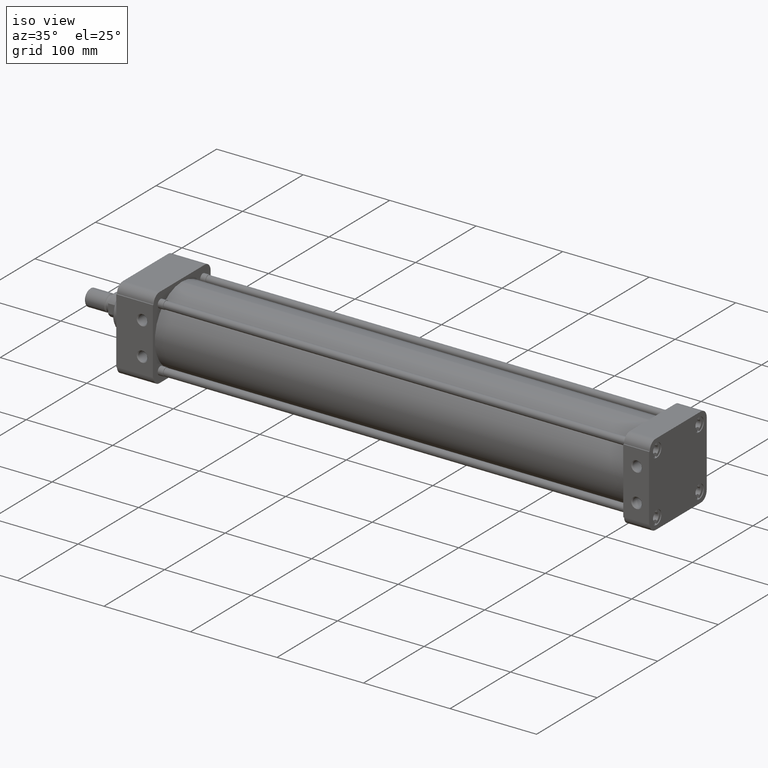
[diagram: clean part render]
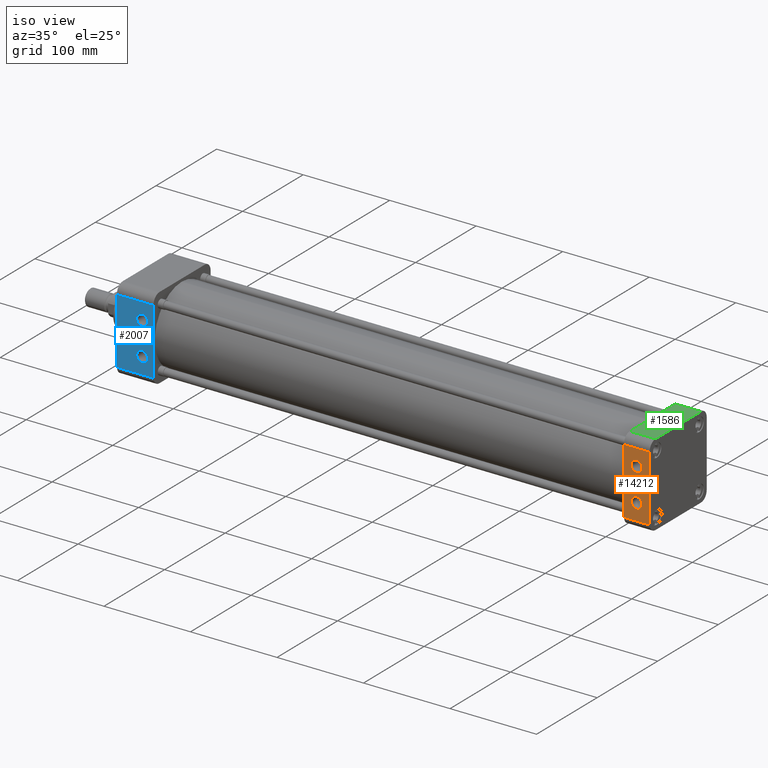
[diagram: same view with three faces highlighted in distinct colors, each labeled with its STEP entity id]
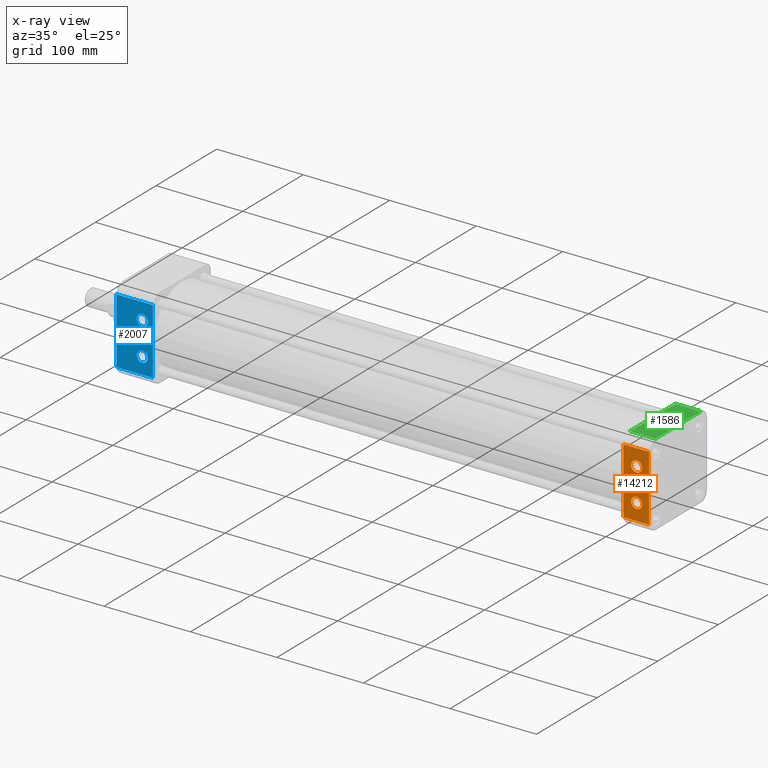
[diagram: x-ray of the same camera — body ghosted, the three highlighted faces saturated]
A machine part, iso view with three faces highlighted in distinct colors.
The next image is the same camera in x-ray (body ghosted, the three faces saturated) — at least one of them is partly hidden behind the body in this view.
Their STEP definitions:

[orange] entity #14212 — the highlighted planar face has unit normal (0, 1, 0).
#23 = CIRCLE ( 'NONE', #2505, 0.2500000000001861300 ) ;
#149 = VERTEX_POINT ( 'NONE', #1162 ) ;
#206 = AXIS2_PLACEMENT_3D ( 'NONE', #11683, #4884, #12818 ) ;
#242 = VERTEX_POINT ( 'NONE', #7846 ) ;
#621 = DIRECTION ( 'NONE',  ( 0.0000000000000000000, 0.0000000000000000000, 1.000000000000000000 ) ) ;
#639 = EDGE_CURVE ( 'NONE', #7214, #242, #1383, .T. ) ;
#710 = DIRECTION ( 'NONE',  ( -1.000000000000000000, 0.0000000000000000000, 0.0000000000000000000 ) ) ;
#933 = ORIENTED_EDGE ( 'NONE', *, *, #1384, .F. ) ;
#1088 = VERTEX_POINT ( 'NONE', #10280 ) ;
#1162 = CARTESIAN_POINT ( 'NONE',  ( 23.68300000000000000, -1.875000000001539400, -0.4999999999998138200 ) ) ;
#1364 = FACE_OUTER_BOUND ( 'NONE', #5490, .T. ) ;
#1383 = LINE ( 'NONE', #12089, #13071 ) ;
#1384 = EDGE_CURVE ( 'NONE', #12585, #149, #10160, .T. ) ;
#1732 = VECTOR ( 'NONE', #11988, 39.37007874015748100 ) ;
#1838 = VECTOR ( 'NONE', #3839, 39.37007874015748100 ) ;
#1852 = DIRECTION ( 'NONE',  ( -0.0000000000000000000, -0.0000000000000000000, 1.000000000000000000 ) ) ;
#1853 = DIRECTION ( 'NONE',  ( 0.0000000000000000000, -1.000000000000000000, 0.0000000000000000000 ) ) ;
#2416 = CARTESIAN_POINT ( 'NONE',  ( 23.68300000000000000, -1.875000000001539400, -1.000000000000186100 ) ) ;
#2505 = AXIS2_PLACEMENT_3D ( 'NONE', #11573, #4781, #12721 ) ;
#2642 = ORIENTED_EDGE ( 'NONE', *, *, #2983, .F. ) ;
#2698 = CARTESIAN_POINT ( 'NONE',  ( 23.07599999999999700, -1.874999999999999800, 1.499999999999999800 ) ) ;
#2983 = EDGE_CURVE ( 'NONE', #1088, #14157, #4822, .T. ) ;
#3050 = DIRECTION ( 'NONE',  ( 0.0000000000000000000, 1.000000000000000000, 0.0000000000000000000 ) ) ;
#3356 = AXIS2_PLACEMENT_3D ( 'NONE', #14186, #7405, #621 ) ;
#3839 = DIRECTION ( 'NONE',  ( 1.000000000000000000, -0.0000000000000000000, -0.0000000000000000000 ) ) ;
#4323 = ORIENTED_EDGE ( 'NONE', *, *, #4877, .F. ) ;
#4781 = DIRECTION ( 'NONE',  ( 0.0000000000000000000, -1.000000000000000000, 0.0000000000000000000 ) ) ;
#4822 = LINE ( 'NONE', #2698, #1838 ) ;
#4877 = EDGE_CURVE ( 'NONE', #8462, #13217, #9821, .T. ) ;
#4884 = DIRECTION ( 'NONE',  ( 0.0000000000000000000, -1.000000000000000000, 0.0000000000000000000 ) ) ;
#5194 = CARTESIAN_POINT ( 'NONE',  ( 24.24599999999999900, -1.874999999999999800, -1.499999999999999800 ) ) ;
#5212 = ORIENTED_EDGE ( 'NONE', *, *, #6486, .T. ) ;
#5490 = EDGE_LOOP ( 'NONE', ( #2642, #13324, #8180, #5212 ) ) ;
#6362 = CARTESIAN_POINT ( 'NONE',  ( 24.24599999999999900, -1.874999999999999800, 1.499999999999999800 ) ) ;
#6486 = EDGE_CURVE ( 'NONE', #7214, #14157, #13793, .T. ) ;
#6590 = AXIS2_PLACEMENT_3D ( 'NONE', #9834, #3050, #10971 ) ;
#6648 = FACE_BOUND ( 'NONE', #9389, .T. ) ;
#7214 = VERTEX_POINT ( 'NONE', #12785 ) ;
#7405 = DIRECTION ( 'NONE',  ( 0.0000000000000000000, -1.000000000000000000, 0.0000000000000000000 ) ) ;
#7796 = DIRECTION ( 'NONE',  ( 0.0000000000000000000, 0.0000000000000000000, 1.000000000000000000 ) ) ;
#7846 = CARTESIAN_POINT ( 'NONE',  ( 23.07599999999999700, -1.874999999999999800, -1.499999999999999800 ) ) ;
#8180 = ORIENTED_EDGE ( 'NONE', *, *, #639, .F. ) ;
#8462 = VERTEX_POINT ( 'NONE', #13456 ) ;
#9151 = AXIS2_PLACEMENT_3D ( 'NONE', #14577, #1853, #7796 ) ;
#9389 = EDGE_LOOP ( 'NONE', ( #4323, #13602 ) ) ;
#9416 = CIRCLE ( 'NONE', #3356, 0.2499999999996277100 ) ;
#9422 = EDGE_LOOP ( 'NONE', ( #10742, #933 ) ) ;
#9783 = PLANE ( 'NONE',  #6590 ) ;
#9821 = CIRCLE ( 'NONE', #206, 0.2499999999996277100 ) ;
#9834 = CARTESIAN_POINT ( 'NONE',  ( 23.07599999999999700, -1.874999999999999800, -1.499999999999999800 ) ) ;
#10062 = EDGE_CURVE ( 'NONE', #13217, #8462, #9416, .T. ) ;
#10160 = CIRCLE ( 'NONE', #9151, 0.2500000000001861300 ) ;
#10280 = CARTESIAN_POINT ( 'NONE',  ( 23.07599999999999700, -1.874999999999999800, 1.499999999999999800 ) ) ;
#10462 = CARTESIAN_POINT ( 'NONE',  ( 23.68300000000000000, -1.875000000001539400, 0.5000000000003722600 ) ) ;
#10474 = EDGE_CURVE ( 'NONE', #149, #12585, #23, .T. ) ;
#10742 = ORIENTED_EDGE ( 'NONE', *, *, #10474, .F. ) ;
#10971 = DIRECTION ( 'NONE',  ( 0.0000000000000000000, 0.0000000000000000000, -1.000000000000000000 ) ) ;
#11573 = CARTESIAN_POINT ( 'NONE',  ( 23.68300000000000000, -1.875000000001539400, -0.7499999999999998900 ) ) ;
#11683 = CARTESIAN_POINT ( 'NONE',  ( 23.68300000000000000, -1.875000000001539400, 0.7499999999999998900 ) ) ;
#11988 = DIRECTION ( 'NONE',  ( 0.0000000000000000000, 0.0000000000000000000, 1.000000000000000000 ) ) ;
#12089 = CARTESIAN_POINT ( 'NONE',  ( 23.07599999999999700, -1.874999999999999800, -1.499999999999999800 ) ) ;
#12309 = EDGE_CURVE ( 'NONE', #242, #1088, #13546, .T. ) ;
#12585 = VERTEX_POINT ( 'NONE', #2416 ) ;
#12721 = DIRECTION ( 'NONE',  ( 0.0000000000000000000, 0.0000000000000000000, 1.000000000000000000 ) ) ;
#12785 = CARTESIAN_POINT ( 'NONE',  ( 24.24599999999999900, -1.874999999999999800, -1.499999999999999800 ) ) ;
#12818 = DIRECTION ( 'NONE',  ( 0.0000000000000000000, 0.0000000000000000000, 1.000000000000000000 ) ) ;
#13056 = FACE_BOUND ( 'NONE', #9422, .T. ) ;
#13071 = VECTOR ( 'NONE', #710, 39.37007874015748100 ) ;
#13198 = VECTOR ( 'NONE', #1852, 39.37007874015748100 ) ;
#13217 = VERTEX_POINT ( 'NONE', #10462 ) ;
#13251 = CARTESIAN_POINT ( 'NONE',  ( 23.07599999999999700, -1.874999999999999800, -1.499999999999999800 ) ) ;
#13324 = ORIENTED_EDGE ( 'NONE', *, *, #12309, .F. ) ;
#13456 = CARTESIAN_POINT ( 'NONE',  ( 23.68300000000000000, -1.875000000001539400, 0.9999999999996276300 ) ) ;
#13546 = LINE ( 'NONE', #13251, #13198 ) ;
#13602 = ORIENTED_EDGE ( 'NONE', *, *, #10062, .F. ) ;
#13793 = LINE ( 'NONE', #5194, #1732 ) ;
#14157 = VERTEX_POINT ( 'NONE', #6362 ) ;
#14186 = CARTESIAN_POINT ( 'NONE',  ( 23.68300000000000000, -1.875000000001539400, 0.7499999999999998900 ) ) ;
#14212 = ADVANCED_FACE ( 'NONE', ( #1364, #13056, #6648 ), #9783, .F. ) ;
#14577 = CARTESIAN_POINT ( 'NONE',  ( 23.68300000000000000, -1.875000000001539400, -0.7499999999999998900 ) ) ;

[blue] entity #2007 — the highlighted planar face has unit normal (0, 1, 0).
#4 = DIRECTION ( 'NONE',  ( -0.0000000000000000000, 0.0000000000000000000, -1.000000000000000000 ) ) ;
#387 = DIRECTION ( 'NONE',  ( 1.000000000000000000, 0.0000000000000000000, 0.0000000000000000000 ) ) ;
#461 = EDGE_LOOP ( 'NONE', ( #8375, #5305 ) ) ;
#679 = CARTESIAN_POINT ( 'NONE',  ( 1.669999999999999900, -1.875000000000000000, -1.499999999999999800 ) ) ;
#1025 = FACE_OUTER_BOUND ( 'NONE', #11911, .T. ) ;
#1136 = CARTESIAN_POINT ( 'NONE',  ( 1.669999999999999900, -1.875000000000000000, 1.499999999999999800 ) ) ;
#1148 = CARTESIAN_POINT ( 'NONE',  ( 1.669999999999999900, -1.875000000000000000, 1.499999999999999800 ) ) ;
#1241 = VECTOR ( 'NONE', #12496, 39.37007874015748100 ) ;
#1799 = ORIENTED_EDGE ( 'NONE', *, *, #9134, .F. ) ;
#1860 = DIRECTION ( 'NONE',  ( 0.0000000000000000000, -1.000000000000000000, 0.0000000000000000000 ) ) ;
#2007 = ADVANCED_FACE ( 'NONE', ( #1025, #6302, #12343 ), #2621, .F. ) ;
#2201 = CARTESIAN_POINT ( 'NONE',  ( 1.183000000000000100, -1.875000000001539700, 1.000000000000186100 ) ) ;
#2292 = CARTESIAN_POINT ( 'NONE',  ( 1.183000000000000100, -1.875000000001539700, -0.5000000000003722600 ) ) ;
#2298 = CIRCLE ( 'NONE', #8857, 0.2499999999996277100 ) ;
#2602 = AXIS2_PLACEMENT_3D ( 'NONE', #11678, #4881, #12813 ) ;
#2621 = PLANE ( 'NONE',  #13832 ) ;
#2677 = DIRECTION ( 'NONE',  ( -0.0000000000000000000, 1.000000000000000000, 0.0000000000000000000 ) ) ;
#2960 = EDGE_CURVE ( 'NONE', #10614, #8511, #11725, .T. ) ;
#3627 = ORIENTED_EDGE ( 'NONE', *, *, #14031, .F. ) ;
#3679 = VERTEX_POINT ( 'NONE', #2201 ) ;
#3730 = AXIS2_PLACEMENT_3D ( 'NONE', #5651, #13601, #6792 ) ;
#3873 = DIRECTION ( 'NONE',  ( 0.0000000000000000000, 0.0000000000000000000, -1.000000000000000000 ) ) ;
#4276 = ORIENTED_EDGE ( 'NONE', *, *, #5192, .F. ) ;
#4355 = CIRCLE ( 'NONE', #8697, 0.2500000000001861300 ) ;
#4509 = CARTESIAN_POINT ( 'NONE',  ( 1.669999999999999900, -1.875000000000000000, -1.499999999999999800 ) ) ;
#4664 = VECTOR ( 'NONE', #3873, 39.37007874015748100 ) ;
#4881 = DIRECTION ( 'NONE',  ( 0.0000000000000000000, -1.000000000000000000, 0.0000000000000000000 ) ) ;
#4886 = CARTESIAN_POINT ( 'NONE',  ( 1.183000000000000100, -1.875000000001539700, 0.7499999999999998900 ) ) ;
#5016 = CIRCLE ( 'NONE', #2602, 0.2500000000001861300 ) ;
#5192 = EDGE_CURVE ( 'NONE', #8511, #8898, #14588, .T. ) ;
#5305 = ORIENTED_EDGE ( 'NONE', *, *, #9724, .F. ) ;
#5651 = CARTESIAN_POINT ( 'NONE',  ( 1.183000000000000100, -1.875000000001539700, -0.7499999999999998900 ) ) ;
#5982 = EDGE_CURVE ( 'NONE', #12382, #7072, #2298, .T. ) ;
#6025 = DIRECTION ( 'NONE',  ( 0.0000000000000000000, 0.0000000000000000000, -1.000000000000000000 ) ) ;
#6293 = CARTESIAN_POINT ( 'NONE',  ( 1.183000000000000100, -1.875000000001539700, 0.4999999999998138200 ) ) ;
#6302 = FACE_BOUND ( 'NONE', #11800, .T. ) ;
#6406 = ORIENTED_EDGE ( 'NONE', *, *, #7821, .F. ) ;
#6792 = DIRECTION ( 'NONE',  ( 0.0000000000000000000, 0.0000000000000000000, -1.000000000000000000 ) ) ;
#7072 = VERTEX_POINT ( 'NONE', #2292 ) ;
#7108 = CARTESIAN_POINT ( 'NONE',  ( 1.669999999999999900, -1.875000000000000000, 1.499999999999999800 ) ) ;
#7295 = ORIENTED_EDGE ( 'NONE', *, *, #12196, .T. ) ;
#7710 = LINE ( 'NONE', #10750, #4664 ) ;
#7821 = EDGE_CURVE ( 'NONE', #13620, #3679, #5016, .T. ) ;
#8219 = VECTOR ( 'NONE', #4, 39.37007874015748100 ) ;
#8375 = ORIENTED_EDGE ( 'NONE', *, *, #5982, .F. ) ;
#8511 = VERTEX_POINT ( 'NONE', #1136 ) ;
#8647 = CARTESIAN_POINT ( 'NONE',  ( 1.183000000000000100, -1.875000000001539700, -0.7499999999999998900 ) ) ;
#8697 = AXIS2_PLACEMENT_3D ( 'NONE', #4886, #12819, #6025 ) ;
#8734 = VECTOR ( 'NONE', #387, 39.37007874015748100 ) ;
#8857 = AXIS2_PLACEMENT_3D ( 'NONE', #8647, #1860, #9765 ) ;
#8898 = VERTEX_POINT ( 'NONE', #679 ) ;
#9134 = EDGE_CURVE ( 'NONE', #8898, #13124, #12909, .T. ) ;
#9238 = CARTESIAN_POINT ( 'NONE',  ( 0.0000000000000000000, -1.875000000000000000, -1.499999999999999800 ) ) ;
#9258 = CIRCLE ( 'NONE', #3730, 0.2499999999996277100 ) ;
#9460 = CARTESIAN_POINT ( 'NONE',  ( 1.669999999999999900, -1.875000000000000000, 1.499999999999999800 ) ) ;
#9724 = EDGE_CURVE ( 'NONE', #7072, #12382, #9258, .T. ) ;
#9765 = DIRECTION ( 'NONE',  ( 0.0000000000000000000, 0.0000000000000000000, -1.000000000000000000 ) ) ;
#10598 = DIRECTION ( 'NONE',  ( 0.0000000000000000000, -0.0000000000000000000, 1.000000000000000000 ) ) ;
#10614 = VERTEX_POINT ( 'NONE', #10974 ) ;
#10750 = CARTESIAN_POINT ( 'NONE',  ( 0.0000000000000000000, -1.875000000000000000, 1.499999999999999800 ) ) ;
#10974 = CARTESIAN_POINT ( 'NONE',  ( 0.0000000000000000000, -1.875000000000000000, 1.499999999999999800 ) ) ;
#11678 = CARTESIAN_POINT ( 'NONE',  ( 1.183000000000000100, -1.875000000001539700, 0.7499999999999998900 ) ) ;
#11725 = LINE ( 'NONE', #7108, #8734 ) ;
#11800 = EDGE_LOOP ( 'NONE', ( #6406, #3627 ) ) ;
#11911 = EDGE_LOOP ( 'NONE', ( #1799, #4276, #13321, #7295 ) ) ;
#12196 = EDGE_CURVE ( 'NONE', #10614, #13124, #7710, .T. ) ;
#12343 = FACE_BOUND ( 'NONE', #461, .T. ) ;
#12382 = VERTEX_POINT ( 'NONE', #14474 ) ;
#12496 = DIRECTION ( 'NONE',  ( -1.000000000000000000, -0.0000000000000000000, -0.0000000000000000000 ) ) ;
#12813 = DIRECTION ( 'NONE',  ( 0.0000000000000000000, 0.0000000000000000000, -1.000000000000000000 ) ) ;
#12819 = DIRECTION ( 'NONE',  ( 0.0000000000000000000, -1.000000000000000000, 0.0000000000000000000 ) ) ;
#12909 = LINE ( 'NONE', #4509, #1241 ) ;
#13124 = VERTEX_POINT ( 'NONE', #9238 ) ;
#13321 = ORIENTED_EDGE ( 'NONE', *, *, #2960, .F. ) ;
#13601 = DIRECTION ( 'NONE',  ( 0.0000000000000000000, -1.000000000000000000, 0.0000000000000000000 ) ) ;
#13620 = VERTEX_POINT ( 'NONE', #6293 ) ;
#13832 = AXIS2_PLACEMENT_3D ( 'NONE', #9460, #2677, #10598 ) ;
#14031 = EDGE_CURVE ( 'NONE', #3679, #13620, #4355, .T. ) ;
#14474 = CARTESIAN_POINT ( 'NONE',  ( 1.183000000000000100, -1.875000000001539700, -0.9999999999996276300 ) ) ;
#14588 = LINE ( 'NONE', #1148, #8219 ) ;

[green] entity #1586 — the highlighted planar face has unit normal (0, 0, -1).
#176 = PLANE ( 'NONE',  #10855 ) ;
#1011 = VECTOR ( 'NONE', #3000, 39.37007874015748100 ) ;
#1418 = CARTESIAN_POINT ( 'NONE',  ( 23.07599999999999700, -1.453124999999999800, 1.875000000000000000 ) ) ;
#1523 = LINE ( 'NONE', #12616, #13215 ) ;
#1586 = ADVANCED_FACE ( 'NONE', ( #8753 ), #176, .F. ) ;
#1939 = CARTESIAN_POINT ( 'NONE',  ( 24.24599999999999900, 1.500000000000000200, 1.875000000000000700 ) ) ;
#2518 = DIRECTION ( 'NONE',  ( -1.000000000000000000, 0.0000000000000000000, 0.0000000000000000000 ) ) ;
#3000 = DIRECTION ( 'NONE',  ( -1.000000000000000000, 0.0000000000000000000, 0.0000000000000000000 ) ) ;
#3721 = ORIENTED_EDGE ( 'NONE', *, *, #14565, .T. ) ;
#3999 = LINE ( 'NONE', #8671, #1011 ) ;
#4115 = CARTESIAN_POINT ( 'NONE',  ( 23.07599999999999700, 1.500000000000000200, 1.875000000000000900 ) ) ;
#4678 = LINE ( 'NONE', #4115, #7719 ) ;
#4943 = ORIENTED_EDGE ( 'NONE', *, *, #12892, .F. ) ;
#5145 = LINE ( 'NONE', #8765, #10806 ) ;
#5290 = DIRECTION ( 'NONE',  ( 1.000000000000000000, -0.0000000000000000000, -0.0000000000000000000 ) ) ;
#5426 = DIRECTION ( 'NONE',  ( 0.0000000000000000000, 1.000000000000000000, 0.0000000000000000000 ) ) ;
#6436 = ORIENTED_EDGE ( 'NONE', *, *, #9426, .F. ) ;
#7445 = VERTEX_POINT ( 'NONE', #1939 ) ;
#7719 = VECTOR ( 'NONE', #5290, 39.37007874015748100 ) ;
#8337 = VERTEX_POINT ( 'NONE', #10266 ) ;
#8671 = CARTESIAN_POINT ( 'NONE',  ( 23.07599999999999700, -1.453124999999999800, 1.875000000000000000 ) ) ;
#8753 = FACE_OUTER_BOUND ( 'NONE', #13133, .T. ) ;
#8765 = CARTESIAN_POINT ( 'NONE',  ( 23.07599999999999700, -1.453124999999999800, 1.875000000000000000 ) ) ;
#9308 = DIRECTION ( 'NONE',  ( 0.0000000000000000000, 0.0000000000000000000, -1.000000000000000000 ) ) ;
#9426 = EDGE_CURVE ( 'NONE', #8337, #7445, #4678, .T. ) ;
#9578 = ORIENTED_EDGE ( 'NONE', *, *, #14199, .F. ) ;
#9688 = VERTEX_POINT ( 'NONE', #14680 ) ;
#10266 = CARTESIAN_POINT ( 'NONE',  ( 23.07599999999999700, 1.500000000000000200, 1.875000000000000700 ) ) ;
#10574 = DIRECTION ( 'NONE',  ( 0.0000000000000000000, 1.000000000000000000, 0.0000000000000000000 ) ) ;
#10806 = VECTOR ( 'NONE', #5426, 39.37007874015748100 ) ;
#10855 = AXIS2_PLACEMENT_3D ( 'NONE', #1418, #9308, #2518 ) ;
#12616 = CARTESIAN_POINT ( 'NONE',  ( 24.24599999999999900, 1.500000000000000200, 1.875000000000000000 ) ) ;
#12892 = EDGE_CURVE ( 'NONE', #14136, #8337, #5145, .T. ) ;
#13035 = CARTESIAN_POINT ( 'NONE',  ( 23.07599999999999700, -1.453124999999999800, 1.875000000000000000 ) ) ;
#13133 = EDGE_LOOP ( 'NONE', ( #6436, #4943, #9578, #3721 ) ) ;
#13215 = VECTOR ( 'NONE', #10574, 39.37007874015748100 ) ;
#14136 = VERTEX_POINT ( 'NONE', #13035 ) ;
#14199 = EDGE_CURVE ( 'NONE', #9688, #14136, #3999, .T. ) ;
#14565 = EDGE_CURVE ( 'NONE', #9688, #7445, #1523, .T. ) ;
#14680 = CARTESIAN_POINT ( 'NONE',  ( 24.24599999999999900, -1.453124999999999600, 1.875000000000000000 ) ) ;